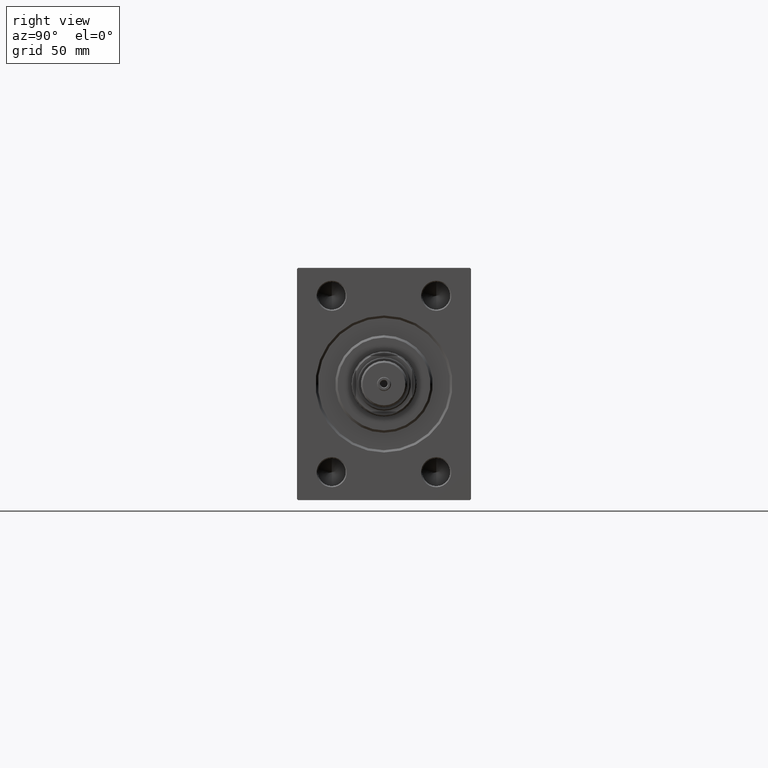
[diagram: clean part render]
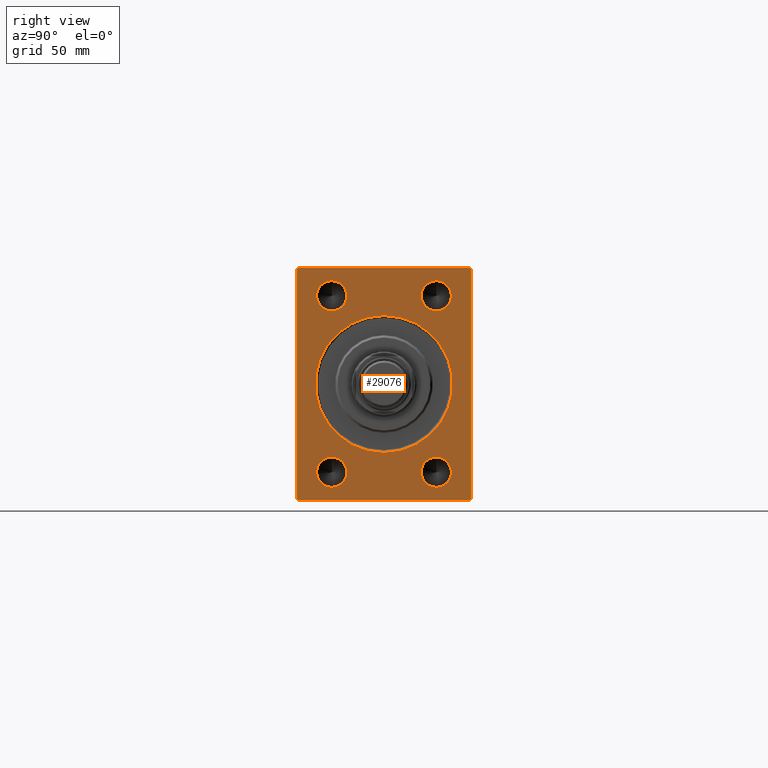
[diagram: same view with one face highlighted and labeled with its STEP entity id]
A machine part, right view. The second image highlights one B-rep face of the part: STEP entity #29076.
In plain terms, the highlighted planar face has unit normal (-1, 0, 0).
Its self-contained STEP definition (entity closure, byte-faithful):
#182 = CARTESIAN_POINT ( 'NONE',  ( 0.000000000000000000, -36.99999999999998579, -50.00000000000001421 ) ) ;
#262 = DIRECTION ( 'NONE',  ( -0.000000000000000000, 0.7071067811865474617, -0.7071067811865474617 ) ) ;
#286 = AXIS2_PLACEMENT_3D ( 'NONE', #20619, #2362, #35289 ) ;
#554 = AXIS2_PLACEMENT_3D ( 'NONE', #18462, #35032, #19397 ) ;
#665 = LINE ( 'NONE', #37656, #16165 ) ;
#973 = CARTESIAN_POINT ( 'NONE',  ( 0.000000000000000000, 37.50000000000000000, -50.00000000000000000 ) ) ;
#1648 = DIRECTION ( 'NONE',  ( 1.000000000000000000, 0.000000000000000000, 0.000000000000000000 ) ) ;
#1768 = AXIS2_PLACEMENT_3D ( 'NONE', #41375, #12046, #26685 ) ;
#1922 = ORIENTED_EDGE ( 'NONE', *, *, #13960, .T. ) ;
#2080 = LINE ( 'NONE', #35243, #43736 ) ;
#2149 = VERTEX_POINT ( 'NONE', #10677 ) ;
#2362 = DIRECTION ( 'NONE',  ( 1.000000000000000000, 0.000000000000000000, 0.000000000000000000 ) ) ;
#2546 = EDGE_CURVE ( 'NONE', #17766, #34835, #26735, .T. ) ;
#3189 = CARTESIAN_POINT ( 'NONE',  ( 0.000000000000000000, -36.99999999999998579, -50.00000000000001421 ) ) ;
#3568 = AXIS2_PLACEMENT_3D ( 'NONE', #27336, #12464, #5252 ) ;
#3926 = CARTESIAN_POINT ( 'NONE',  ( 0.000000000000000000, -37.00000000000000000, 49.99999999999998579 ) ) ;
#4631 = EDGE_LOOP ( 'NONE', ( #28320, #23307 ) ) ;
#5252 = DIRECTION ( 'NONE',  ( 0.000000000000000000, 0.000000000000000000, -1.000000000000000000 ) ) ;
#5969 = FACE_BOUND ( 'NONE', #43029, .T. ) ;
#5979 = CARTESIAN_POINT ( 'NONE',  ( 0.000000000000000000, -37.50000000000000000, -49.50000000000000000 ) ) ;
#6530 = EDGE_CURVE ( 'NONE', #34455, #2149, #35988, .T. ) ;
#6779 = VERTEX_POINT ( 'NONE', #5979 ) ;
#6949 = ORIENTED_EDGE ( 'NONE', *, *, #23731, .F. ) ;
#7457 = EDGE_CURVE ( 'NONE', #33872, #19564, #2080, .T. ) ;
#7843 = ORIENTED_EDGE ( 'NONE', *, *, #34239, .T. ) ;
#8056 = EDGE_CURVE ( 'NONE', #10478, #37240, #22811, .T. ) ;
#8117 = ORIENTED_EDGE ( 'NONE', *, *, #2546, .T. ) ;
#8424 = LINE ( 'NONE', #973, #29381 ) ;
#8595 = VERTEX_POINT ( 'NONE', #3926 ) ;
#8820 = EDGE_LOOP ( 'NONE', ( #9663, #10641, #6949, #41876, #12048, #44129, #38470, #11682 ) ) ;
#8869 = FACE_BOUND ( 'NONE', #4631, .T. ) ;
#9111 = FACE_BOUND ( 'NONE', #12663, .T. ) ;
#9181 = CARTESIAN_POINT ( 'NONE',  ( 0.000000000000000000, 0.000000000000000000, 29.50000000000004263 ) ) ;
#9324 = CIRCLE ( 'NONE', #25438, 6.500000000000033751 ) ;
#9579 = FACE_BOUND ( 'NONE', #28256, .T. ) ;
#9663 = ORIENTED_EDGE ( 'NONE', *, *, #22173, .F. ) ;
#10223 = EDGE_CURVE ( 'NONE', #2149, #34455, #10776, .T. ) ;
#10478 = VERTEX_POINT ( 'NONE', #13127 ) ;
#10641 = ORIENTED_EDGE ( 'NONE', *, *, #11616, .T. ) ;
#10677 = CARTESIAN_POINT ( 'NONE',  ( 0.000000000000000000, 22.49999999999999289, 31.49999999999996447 ) ) ;
#10776 = CIRCLE ( 'NONE', #18435, 6.500000000000033751 ) ;
#11297 = DIRECTION ( 'NONE',  ( 0.000000000000000000, -1.000000000000000000, -3.700743415417189125E-16 ) ) ;
#11512 = CARTESIAN_POINT ( 'NONE',  ( 0.000000000000000000, -22.50000000000000711, -44.50000000000003553 ) ) ;
#11532 = LINE ( 'NONE', #43993, #26354 ) ;
#11556 = ORIENTED_EDGE ( 'NONE', *, *, #39589, .T. ) ;
#11576 = DIRECTION ( 'NONE',  ( 0.000000000000000000, 0.000000000000000000, -1.000000000000000000 ) ) ;
#11616 = EDGE_CURVE ( 'NONE', #28487, #8595, #665, .T. ) ;
#11682 = ORIENTED_EDGE ( 'NONE', *, *, #22459, .T. ) ;
#11815 = DIRECTION ( 'NONE',  ( 1.000000000000000000, 0.000000000000000000, 0.000000000000000000 ) ) ;
#12046 = DIRECTION ( 'NONE',  ( 1.000000000000000000, 0.000000000000000000, 0.000000000000000000 ) ) ;
#12048 = ORIENTED_EDGE ( 'NONE', *, *, #31807, .F. ) ;
#12464 = DIRECTION ( 'NONE',  ( 1.000000000000000000, 0.000000000000000000, 0.000000000000000000 ) ) ;
#12660 = DIRECTION ( 'NONE',  ( 0.000000000000000000, -0.7071067811865474617, -0.7071067811865474617 ) ) ;
#12663 = EDGE_LOOP ( 'NONE', ( #1922, #30742 ) ) ;
#12989 = EDGE_CURVE ( 'NONE', #19625, #19564, #26210, .T. ) ;
#13127 = CARTESIAN_POINT ( 'NONE',  ( 0.000000000000000000, 36.99999999999998579, 50.00000000000001421 ) ) ;
#13214 = EDGE_LOOP ( 'NONE', ( #13803, #7843 ) ) ;
#13616 = VERTEX_POINT ( 'NONE', #15933 ) ;
#13705 = DIRECTION ( 'NONE',  ( 0.000000000000000000, 0.000000000000000000, -1.000000000000000000 ) ) ;
#13803 = ORIENTED_EDGE ( 'NONE', *, *, #20706, .T. ) ;
#13960 = EDGE_CURVE ( 'NONE', #13616, #40321, #9324, .T. ) ;
#15126 = DIRECTION ( 'NONE',  ( 0.000000000000000000, 0.000000000000000000, -1.000000000000000000 ) ) ;
#15314 = DIRECTION ( 'NONE',  ( -0.000000000000000000, 0.7071067811865474617, 0.7071067811865474617 ) ) ;
#15405 = CARTESIAN_POINT ( 'NONE',  ( 0.000000000000000000, 0.000000000000000000, 0.000000000000000000 ) ) ;
#15933 = CARTESIAN_POINT ( 'NONE',  ( 0.000000000000000000, -22.50000000000000711, -31.49999999999996447 ) ) ;
#16165 = VECTOR ( 'NONE', #15314, 1000.000000000000114 ) ;
#16850 = CARTESIAN_POINT ( 'NONE',  ( 0.000000000000000000, -37.50000000000000000, 49.49999999999998579 ) ) ;
#17368 = CIRCLE ( 'NONE', #3568, 6.500000000000033751 ) ;
#17418 = CARTESIAN_POINT ( 'NONE',  ( 0.000000000000000000, 22.49999999999999289, -44.50000000000003553 ) ) ;
#17766 = VERTEX_POINT ( 'NONE', #9181 ) ;
#18435 = AXIS2_PLACEMENT_3D ( 'NONE', #42094, #42803, #13705 ) ;
#18462 = CARTESIAN_POINT ( 'NONE',  ( 0.000000000000000000, -22.50000000000000711, 38.00000000000000000 ) ) ;
#18707 = CIRCLE ( 'NONE', #19489, 6.500000000000033751 ) ;
#18762 = DIRECTION ( 'NONE',  ( 0.000000000000000000, 1.000000000000000000, 1.850371707708594316E-16 ) ) ;
#18909 = CIRCLE ( 'NONE', #27337, 29.50000000000004263 ) ;
#19271 = CARTESIAN_POINT ( 'NONE',  ( 0.000000000000000000, -22.50000000000000711, -38.00000000000000000 ) ) ;
#19397 = DIRECTION ( 'NONE',  ( 0.000000000000000000, 0.000000000000000000, -1.000000000000000000 ) ) ;
#19489 = AXIS2_PLACEMENT_3D ( 'NONE', #27377, #42086, #23780 ) ;
#19564 = VERTEX_POINT ( 'NONE', #28877 ) ;
#19625 = VERTEX_POINT ( 'NONE', #3189 ) ;
#20138 = FACE_OUTER_BOUND ( 'NONE', #8820, .T. ) ;
#20588 = ORIENTED_EDGE ( 'NONE', *, *, #41260, .T. ) ;
#20619 = CARTESIAN_POINT ( 'NONE',  ( 0.000000000000000000, 0.000000000000000000, 0.000000000000000000 ) ) ;
#20663 = VECTOR ( 'NONE', #262, 1000.000000000000114 ) ;
#20706 = EDGE_CURVE ( 'NONE', #38890, #26428, #43203, .T. ) ;
#21117 = VERTEX_POINT ( 'NONE', #45871 ) ;
#21383 = DIRECTION ( 'NONE',  ( 1.000000000000000000, 0.000000000000000000, 0.000000000000000000 ) ) ;
#22173 = EDGE_CURVE ( 'NONE', #28487, #6779, #11532, .T. ) ;
#22459 = EDGE_CURVE ( 'NONE', #19625, #6779, #41267, .T. ) ;
#22545 = VECTOR ( 'NONE', #29957, 1000.000000000000114 ) ;
#22811 = LINE ( 'NONE', #47379, #20663 ) ;
#23307 = ORIENTED_EDGE ( 'NONE', *, *, #10223, .T. ) ;
#23354 = CARTESIAN_POINT ( 'NONE',  ( 0.000000000000000000, -22.50000000000000711, 31.49999999999996447 ) ) ;
#23731 = EDGE_CURVE ( 'NONE', #10478, #8595, #43530, .T. ) ;
#23780 = DIRECTION ( 'NONE',  ( 0.000000000000000000, 0.000000000000000000, -1.000000000000000000 ) ) ;
#25438 = AXIS2_PLACEMENT_3D ( 'NONE', #45458, #21383, #46172 ) ;
#25942 = DIRECTION ( 'NONE',  ( 0.000000000000000000, 0.000000000000000000, -1.000000000000000000 ) ) ;
#26210 = LINE ( 'NONE', #44521, #28484 ) ;
#26354 = VECTOR ( 'NONE', #15126, 1000.000000000000000 ) ;
#26428 = VERTEX_POINT ( 'NONE', #17418 ) ;
#26636 = AXIS2_PLACEMENT_3D ( 'NONE', #15405, #11815, #11576 ) ;
#26685 = DIRECTION ( 'NONE',  ( 0.000000000000000000, 0.000000000000000000, -1.000000000000000000 ) ) ;
#26735 = CIRCLE ( 'NONE', #26636, 29.50000000000004263 ) ;
#27336 = CARTESIAN_POINT ( 'NONE',  ( 0.000000000000000000, -22.50000000000000711, 38.00000000000000000 ) ) ;
#27337 = AXIS2_PLACEMENT_3D ( 'NONE', #30017, #1648, #45640 ) ;
#27377 = CARTESIAN_POINT ( 'NONE',  ( 0.000000000000000000, 22.49999999999999289, -38.00000000000000000 ) ) ;
#27586 = CARTESIAN_POINT ( 'NONE',  ( 0.000000000000000000, 37.49999999999998579, 49.50000000000001421 ) ) ;
#28256 = EDGE_LOOP ( 'NONE', ( #11556, #20588 ) ) ;
#28320 = ORIENTED_EDGE ( 'NONE', *, *, #6530, .T. ) ;
#28484 = VECTOR ( 'NONE', #18762, 1000.000000000000000 ) ;
#28487 = VERTEX_POINT ( 'NONE', #16850 ) ;
#28683 = VECTOR ( 'NONE', #11297, 1000.000000000000000 ) ;
#28877 = CARTESIAN_POINT ( 'NONE',  ( 0.000000000000000000, 37.00000000000000000, -50.00000000000000000 ) ) ;
#28894 = CIRCLE ( 'NONE', #554, 6.500000000000033751 ) ;
#29068 = CARTESIAN_POINT ( 'NONE',  ( 0.000000000000000000, 37.49999999999998579, 50.00000000000001421 ) ) ;
#29076 = ADVANCED_FACE ( 'NONE', ( #5969, #9111, #9579, #8869, #42521, #20138 ), #35054, .F. ) ;
#29381 = VECTOR ( 'NONE', #38199, 1000.000000000000000 ) ;
#29652 = CARTESIAN_POINT ( 'NONE',  ( 0.000000000000000000, 22.49999999999999289, -31.49999999999996447 ) ) ;
#29957 = DIRECTION ( 'NONE',  ( -0.000000000000000000, -0.7071067811865474617, 0.7071067811865474617 ) ) ;
#29999 = CARTESIAN_POINT ( 'NONE',  ( 0.000000000000000000, 22.49999999999999289, 44.50000000000003553 ) ) ;
#30017 = CARTESIAN_POINT ( 'NONE',  ( 0.000000000000000000, 0.000000000000000000, 0.000000000000000000 ) ) ;
#30337 = CARTESIAN_POINT ( 'NONE',  ( 0.000000000000000000, 37.50000000000000000, -49.50000000000000000 ) ) ;
#30576 = AXIS2_PLACEMENT_3D ( 'NONE', #41105, #36786, #25942 ) ;
#30742 = ORIENTED_EDGE ( 'NONE', *, *, #32887, .T. ) ;
#31807 = EDGE_CURVE ( 'NONE', #33872, #37240, #8424, .T. ) ;
#32887 = EDGE_CURVE ( 'NONE', #40321, #13616, #40183, .T. ) ;
#33797 = VERTEX_POINT ( 'NONE', #23354 ) ;
#33872 = VERTEX_POINT ( 'NONE', #30337 ) ;
#33945 = DIRECTION ( 'NONE',  ( 1.000000000000000000, 0.000000000000000000, 0.000000000000000000 ) ) ;
#34183 = DIRECTION ( 'NONE',  ( 0.000000000000000000, 0.000000000000000000, -1.000000000000000000 ) ) ;
#34239 = EDGE_CURVE ( 'NONE', #26428, #38890, #18707, .T. ) ;
#34455 = VERTEX_POINT ( 'NONE', #29999 ) ;
#34835 = VERTEX_POINT ( 'NONE', #44518 ) ;
#35032 = DIRECTION ( 'NONE',  ( 1.000000000000000000, 0.000000000000000000, 0.000000000000000000 ) ) ;
#35054 = PLANE ( 'NONE',  #286 ) ;
#35243 = CARTESIAN_POINT ( 'NONE',  ( 0.000000000000000000, 37.50000000000000000, -49.50000000000000000 ) ) ;
#35289 = DIRECTION ( 'NONE',  ( 0.000000000000000000, 0.000000000000000000, -1.000000000000000000 ) ) ;
#35988 = CIRCLE ( 'NONE', #30576, 6.500000000000033751 ) ;
#36786 = DIRECTION ( 'NONE',  ( 1.000000000000000000, 0.000000000000000000, 0.000000000000000000 ) ) ;
#37240 = VERTEX_POINT ( 'NONE', #27586 ) ;
#37656 = CARTESIAN_POINT ( 'NONE',  ( 0.000000000000000000, -37.50000000000000000, 49.49999999999998579 ) ) ;
#38199 = DIRECTION ( 'NONE',  ( 0.000000000000000000, -1.387778780781445429E-16, 1.000000000000000000 ) ) ;
#38470 = ORIENTED_EDGE ( 'NONE', *, *, #12989, .F. ) ;
#38890 = VERTEX_POINT ( 'NONE', #29652 ) ;
#39589 = EDGE_CURVE ( 'NONE', #21117, #33797, #17368, .T. ) ;
#39648 = EDGE_CURVE ( 'NONE', #34835, #17766, #18909, .T. ) ;
#40183 = CIRCLE ( 'NONE', #43247, 6.500000000000033751 ) ;
#40321 = VERTEX_POINT ( 'NONE', #11512 ) ;
#41105 = CARTESIAN_POINT ( 'NONE',  ( 0.000000000000000000, 22.49999999999999289, 38.00000000000000000 ) ) ;
#41260 = EDGE_CURVE ( 'NONE', #33797, #21117, #28894, .T. ) ;
#41267 = LINE ( 'NONE', #182, #22545 ) ;
#41375 = CARTESIAN_POINT ( 'NONE',  ( 0.000000000000000000, 22.49999999999999289, -38.00000000000000000 ) ) ;
#41876 = ORIENTED_EDGE ( 'NONE', *, *, #8056, .T. ) ;
#42086 = DIRECTION ( 'NONE',  ( 1.000000000000000000, 0.000000000000000000, 0.000000000000000000 ) ) ;
#42094 = CARTESIAN_POINT ( 'NONE',  ( 0.000000000000000000, 22.49999999999999289, 38.00000000000000000 ) ) ;
#42521 = FACE_BOUND ( 'NONE', #13214, .T. ) ;
#42803 = DIRECTION ( 'NONE',  ( 1.000000000000000000, 0.000000000000000000, 0.000000000000000000 ) ) ;
#43029 = EDGE_LOOP ( 'NONE', ( #8117, #44885 ) ) ;
#43203 = CIRCLE ( 'NONE', #1768, 6.500000000000033751 ) ;
#43247 = AXIS2_PLACEMENT_3D ( 'NONE', #19271, #33945, #34183 ) ;
#43530 = LINE ( 'NONE', #29068, #28683 ) ;
#43736 = VECTOR ( 'NONE', #12660, 1000.000000000000114 ) ;
#43993 = CARTESIAN_POINT ( 'NONE',  ( 0.000000000000000000, -37.50000000000000000, 49.99999999999998579 ) ) ;
#44129 = ORIENTED_EDGE ( 'NONE', *, *, #7457, .T. ) ;
#44518 = CARTESIAN_POINT ( 'NONE',  ( 0.000000000000000000, 3.612708057484697126E-15, -29.50000000000004263 ) ) ;
#44521 = CARTESIAN_POINT ( 'NONE',  ( 0.000000000000000000, -37.50000000000000000, -50.00000000000001421 ) ) ;
#44885 = ORIENTED_EDGE ( 'NONE', *, *, #39648, .T. ) ;
#45458 = CARTESIAN_POINT ( 'NONE',  ( 0.000000000000000000, -22.50000000000000711, -38.00000000000000000 ) ) ;
#45640 = DIRECTION ( 'NONE',  ( 0.000000000000000000, 0.000000000000000000, -1.000000000000000000 ) ) ;
#45871 = CARTESIAN_POINT ( 'NONE',  ( 0.000000000000000000, -22.50000000000000711, 44.50000000000003553 ) ) ;
#46172 = DIRECTION ( 'NONE',  ( 0.000000000000000000, 0.000000000000000000, -1.000000000000000000 ) ) ;
#47379 = CARTESIAN_POINT ( 'NONE',  ( 0.000000000000000000, 36.99999999999998579, 50.00000000000001421 ) ) ;